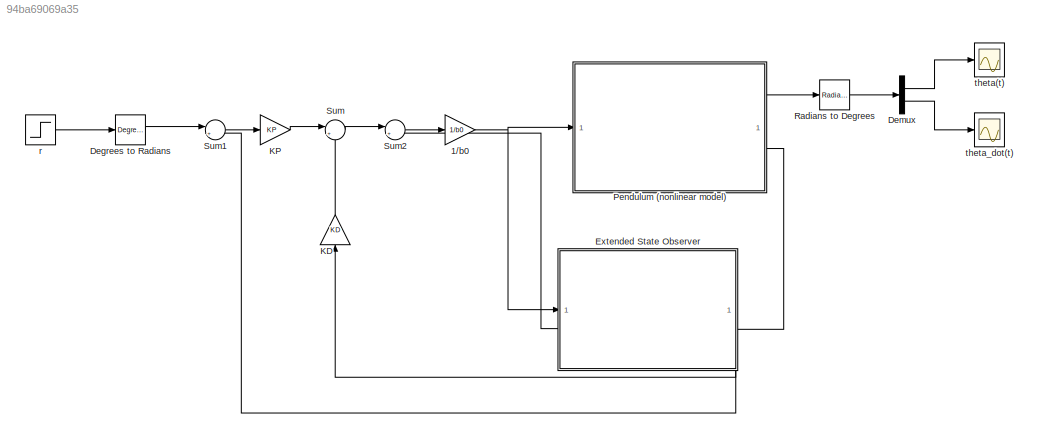
MODEL slx_94ba69069a35
KIND model
CONFIG AbsTol = auto
CONFIG EnableMultiTasking = off
CONFIG FixedStep = 0.01
CONFIG MaxStep = auto
CONFIG MinStep = auto
CONFIG RelTol = 1e-3
CONFIG SampleTimeConstraint = Unconstrained
CONFIG SolverName = ode3
CONFIG StartTime = 0.0
CONFIG StopTime = 20
BLOCK [Gain] 1//b0
  Gain = 1/b0
BLOCK [Reference] Degrees to Radians  REF=simulink_extras/Transformations/Degrees to
Radians
  SourceBlock = simulink_extras/Transformations/Degrees to\nRadians
  SourceType = DegreesToRadians
BLOCK [Demux] Demux
  Outputs = 2
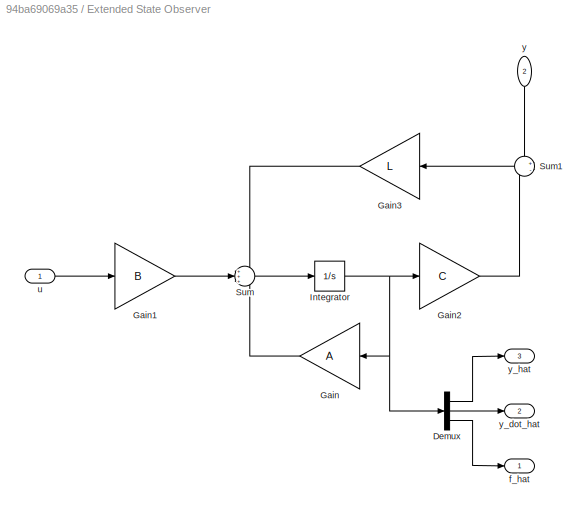
BLOCK [SubSystem] Extended State Observer
  NameLocation = top
  PortSchema = {"entries":[{"content":{"sides":[{"content":{"connectorIds":["In1"]},"type":"ConnectorPlacement.EquallySpacedRectSide","uuid":"e39c489f-7ce3-4515-bfb3-5978cf16689b"},{"content":{"connectorIds":["In2"],"side":"RIGHT"},"type":"ConnectorPlacement.EquallySpacedRectSide","uuid":"c323375b-3042-4327-9d10-0e78d49b9c28"},{"content":{"connectorIds":[],"side":"TOP"},"type":"ConnectorPlacement.EquallySpacedRe...<+403ch>
BLOCK [Demux] Extended State Observer/Demux
  Outputs = 3
BLOCK [Gain] Extended State Observer/Gain
  Gain = A
  Multiplication = Matrix(K*u) (u vector)
BLOCK [Gain] Extended State Observer/Gain1
  Gain = B
  Multiplication = Matrix(K*u) (u vector)
BLOCK [Gain] Extended State Observer/Gain2
  Gain = C
  Multiplication = Matrix(K*u) (u vector)
BLOCK [Gain] Extended State Observer/Gain3
  Gain = L
  Multiplication = Matrix(K*u) (u vector)
BLOCK [Integrator] Extended State Observer/Integrator
  InitialCondition = zeros(3,1)
BLOCK [Sum] Extended State Observer/Sum
  Inputs = +++
BLOCK [Sum] Extended State Observer/Sum1
  Inputs = +-
BLOCK [Outport] Extended State Observer/f_hat
BLOCK [Inport] Extended State Observer/u
BLOCK [Inport] Extended State Observer/y
  NameLocation = left
  Port = 2
BLOCK [Outport] Extended State Observer/y_dot_hat
  Port = 2
BLOCK [Outport] Extended State Observer/y_hat
  Port = 3
BLOCK [Gain] KD
  Gain = KD
  NameLocation = left
BLOCK [Gain] KP
  Gain = KP
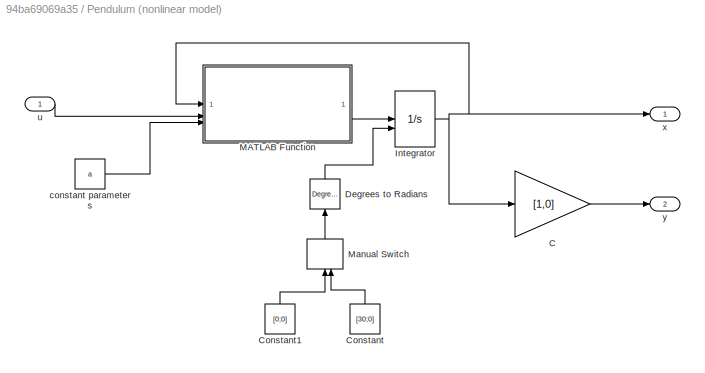
BLOCK [SubSystem] Pendulum (nonlinear model)
BLOCK [Gain] Pendulum (nonlinear model)/C
  Gain = [1,0]
  Multiplication = Matrix(K*u) (u vector)
BLOCK [Constant] Pendulum (nonlinear model)/Constant
  NameLocation = right
  Value = [30;0]
  VectorParams1D = off
BLOCK [Constant] Pendulum (nonlinear model)/Constant1
  NameLocation = right
  Value = [0;0]
  VectorParams1D = off
BLOCK [Reference] Pendulum (nonlinear model)/Degrees to Radians  REF=simulink_extras/Transformations/Degrees to
Radians
  NameLocation = right
  SourceBlock = simulink_extras/Transformations/Degrees to\nRadians
  SourceType = DegreesToRadians
BLOCK [Integrator] Pendulum (nonlinear model)/Integrator
  InitialCondition = [0.1;0]
  InitialConditionSource = external
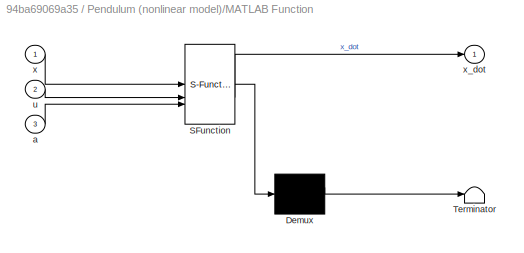
BLOCK [SubSystem] Pendulum (nonlinear model)/MATLAB Function
  ErrorFcn = Stateflow.Translate.translate
  PermitHierarchicalResolution = ExplicitOnly
  SFBlockType = MATLAB Function
  TreatAsAtomicUnit = on
BLOCK [Demux] Pendulum (nonlinear model)/MATLAB Function/ Demux 
  Outputs = 1
BLOCK [S-Function] Pendulum (nonlinear model)/MATLAB Function/ SFunction 
  EnableBusSupport = on
  FunctionName = sf_sfun
  PortCounts = [3 2]
  SFcnIsStateOwnerBlock = off
  SFunctionDeploymentMode = off
  Tag = Stateflow S-Function 2
BLOCK [Terminator] Pendulum (nonlinear model)/MATLAB Function/ Terminator 
BLOCK [Inport] Pendulum (nonlinear model)/MATLAB Function/a
  Port = 3
BLOCK [Inport] Pendulum (nonlinear model)/MATLAB Function/u
  Port = 2
BLOCK [Inport] Pendulum (nonlinear model)/MATLAB Function/x
BLOCK [Outport] Pendulum (nonlinear model)/MATLAB Function/x_dot
BLOCK [ManualSwitch] Pendulum (nonlinear model)/Manual Switch
  NameLocation = right
BLOCK [Constant] Pendulum (nonlinear model)/constant parameters
  Value = a
  VectorParams1D = off
BLOCK [Inport] Pendulum (nonlinear model)/u
BLOCK [Outport] Pendulum (nonlinear model)/x
BLOCK [Outport] Pendulum (nonlinear model)/y
  Port = 2
BLOCK [Reference] Radians to Degrees  REF=simulink_extras/Transformations/Radians
to Degrees
  SourceBlock = simulink_extras/Transformations/Radians\nto Degrees
  SourceType = RadiansToDegrees
BLOCK [Sum] Sum
  Inputs = |+-
BLOCK [Sum] Sum1
  Inputs = |+-
BLOCK [Sum] Sum2
  Inputs = |+-
BLOCK [Step] r
  After = 45
  SampleTime = 0
BLOCK [Scope] theta(t)
  Floating = off
  NumInputPorts = 1
  ScopeSpecificationString = Simulink.scopes.TimeScopeBlockCfg('CurrentConfiguration', extmgr.ConfigurationSet(extmgr.Configuration('Core','General UI',true),extmgr.Configuration('Core','Source UI',true),extmgr.Configuration('Sources','WiredSimulink',true,'DataLoggingVariableName','ScopeData1'),extmgr.Configuration('Visuals','Time Domain',true,'SerializedDisplays',{struct('MinYLimReal','-3.74948','MaxYLimReal','33.74536','YLa...<+1426ch>
BLOCK [Scope] theta_dot(t)
  Floating = off
  NumInputPorts = 1
  ScopeSpecificationString = Simulink.scopes.TimeScopeBlockCfg('CurrentConfiguration', extmgr.ConfigurationSet(extmgr.Configuration('Core','General UI',true),extmgr.Configuration('Core','Source UI',true),extmgr.Configuration('Sources','WiredSimulink',true),extmgr.Configuration('Visuals','Time Domain',true,'SerializedDisplays',{struct('MinYLimReal','-1447763606442343279529451061248.00000','MaxYLimReal','26020493947852594979778...<+1563ch>
NET 1//b0:1 -> Extended State Observer:1, Pendulum (nonlinear model):1
LINE Degrees to Radians:1 -> Sum1:1
LINE Demux:1 -> theta(t):1
LINE Demux:2 -> theta_dot(t):1
LINE Extended State Observer/Demux:1 -> Extended State Observer/y_hat:1
LINE Extended State Observer/Demux:2 -> Extended State Observer/y_dot_hat:1
LINE Extended State Observer/Demux:3 -> Extended State Observer/f_hat:1
LINE Extended State Observer/Gain1:1 -> Extended State Observer/Sum:2
LINE Extended State Observer/Gain2:1 -> Extended State Observer/Sum1:2
LINE Extended State Observer/Gain3:1 -> Extended State Observer/Sum:1
LINE Extended State Observer/Gain:1 -> Extended State Observer/Sum:3
NET Extended State Observer/Integrator:1 -> Extended State Observer/Demux:1, Extended State Observer/Gain2:1, Extended State Observer/Gain:1
LINE Extended State Observer/Sum1:1 -> Extended State Observer/Gain3:1
LINE Extended State Observer/Sum:1 -> Extended State Observer/Integrator:1
LINE Extended State Observer/u:1 -> Extended State Observer/Gain1:1
LINE Extended State Observer/y:1 -> Extended State Observer/Sum1:1
LINE Extended State Observer:1 -> Sum2:2
LINE Extended State Observer:2 -> KD:1
LINE Extended State Observer:3 -> Sum1:2
LINE KD:1 -> Sum:2
LINE KP:1 -> Sum:1
LINE Pendulum (nonlinear model)/C:1 -> Pendulum (nonlinear model)/y:1
LINE Pendulum (nonlinear model)/Constant1:1 -> Pendulum (nonlinear model)/Manual Switch:1
LINE Pendulum (nonlinear model)/Constant:1 -> Pendulum (nonlinear model)/Manual Switch:2
LINE Pendulum (nonlinear model)/Degrees to Radians:1 -> Pendulum (nonlinear model)/Integrator:2
NET Pendulum (nonlinear model)/Integrator:1 -> Pendulum (nonlinear model)/C:1, Pendulum (nonlinear model)/MATLAB Function:1, Pendulum (nonlinear model)/x:1
LINE Pendulum (nonlinear model)/MATLAB Function:1 -> Pendulum (nonlinear model)/Integrator:1
LINE Pendulum (nonlinear model)/Manual Switch:1 -> Pendulum (nonlinear model)/Degrees to Radians:1
LINE Pendulum (nonlinear model)/constant parameters:1 -> Pendulum (nonlinear model)/MATLAB Function:3
LINE Pendulum (nonlinear model)/u:1 -> Pendulum (nonlinear model)/MATLAB Function:2
LINE Pendulum (nonlinear model):1 -> Radians to Degrees:1
LINE Pendulum (nonlinear model):2 -> Extended State Observer:2
LINE Radians to Degrees:1 -> Demux:1
LINE Sum1:1 -> KP:1
LINE Sum2:1 -> 1//b0:1
LINE Sum:1 -> Sum2:1
LINE r:1 -> Degrees to Radians:1
note: NET lines group one-source signal fan-out (src -> all destinations, sorted); 1:1 wires keep LINE
CHART Pendulum (nonlinear model)/MATLAB Function states=1 transitions=1
  STATE_LABEL 'eML_blk_kernel()'
  STATE_LABEL 'SCRIPT:\nfunction x_dot = f(x,u,a)\n\n% a is the vector of constant parameters\nm = a(1);\ng = a(2);\nl = a(3);\nd = a(4);\n\nx_dot = [ x(2) ; 1/(m*l^2)*(-m*g*l*sin(x(1))-d*x(2)+u) ];\n'
CHART  states=0 transitions=0
